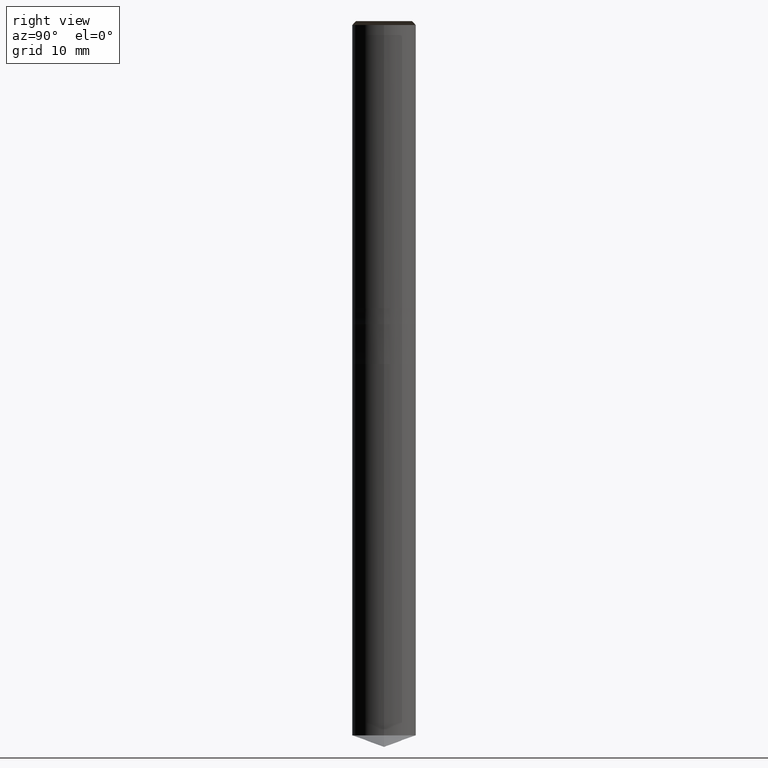
[diagram: clean part render]
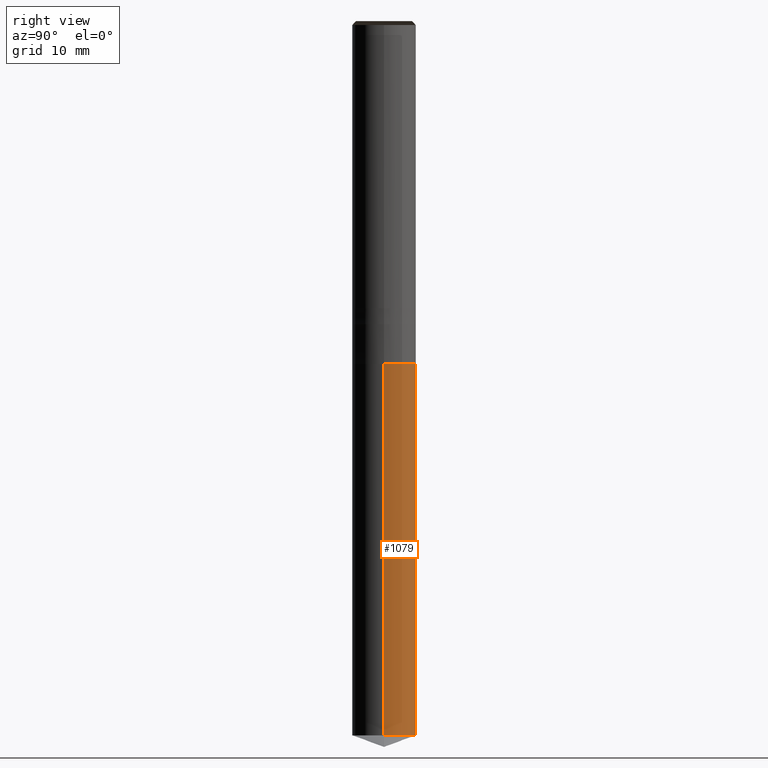
[diagram: same view with one face highlighted and labeled with its STEP entity id]
A machine part, right view. The second image highlights one B-rep face of the part: STEP entity #1079.
In plain terms, the highlighted face is a freeform B-spline surface patch.
Its self-contained STEP definition (entity closure, byte-faithful):
#989=CARTESIAN_POINT('',(4.0,0.0,-53.544119062935));
#990=CARTESIAN_POINT('',(4.0,4.0,-53.544119062935));
#991=CARTESIAN_POINT('',(0.0,4.0,-53.544119062935));
#992=CARTESIAN_POINT('',(-4.0,4.0,-53.544119062935));
#993=CARTESIAN_POINT('',(-4.0,0.0,-53.544119062935));
#994=CARTESIAN_POINT('',(4.0,0.0,-7.0));
#995=CARTESIAN_POINT('',(4.0,4.0,-7.0));
#996=CARTESIAN_POINT('',(0.0,4.0,-7.0));
#997=CARTESIAN_POINT('',(-4.0,4.0,-7.0));
#998=CARTESIAN_POINT('',(-4.0,0.0,-7.0));
#1060=(
BOUNDED_SURFACE()
B_SPLINE_SURFACE(1,2,(
(#989,#990,#991,#992,#993),
(#994,#995,#996,#997,#998)
), .UNSPECIFIED.,.F.,.F.,.F.)
B_SPLINE_SURFACE_WITH_KNOTS((2,2),(3,2,3),(
0.0,1.0),(
0.0,0.5,1.0), .UNSPECIFIED.)
GEOMETRIC_REPRESENTATION_ITEM()
RATIONAL_B_SPLINE_SURFACE(((1.0,0.707106781187,1.0,0.707106781187,1.0),
(1.0,0.707106781187,1.0,0.707106781187,1.0)
))
REPRESENTATION_ITEM('')
SURFACE()
);
#1061=(
BOUNDED_CURVE()
B_SPLINE_CURVE(2,(#993,#992,#991,#990,#989),.UNSPECIFIED.,.F.,.F.)
B_SPLINE_CURVE_WITH_KNOTS((3,2,3),
(0.0,0.5,1.0),.UNSPECIFIED.)
CURVE()
GEOMETRIC_REPRESENTATION_ITEM()
RATIONAL_B_SPLINE_CURVE((1.0,0.707106781187,1.0,0.707106781187,1.0))
REPRESENTATION_ITEM('')
);
#1062=(
BOUNDED_CURVE()
B_SPLINE_CURVE(1,(#989,#994),.UNSPECIFIED.,.F.,.F.)
B_SPLINE_CURVE_WITH_KNOTS((2,2),
(0.0,1.0),.UNSPECIFIED.)
CURVE()
GEOMETRIC_REPRESENTATION_ITEM()
RATIONAL_B_SPLINE_CURVE((1.0,1.0))
REPRESENTATION_ITEM('')
);
#1063=(
BOUNDED_CURVE()
B_SPLINE_CURVE(2,(#994,#995,#996,#997,#998),.UNSPECIFIED.,.F.,.F.)
B_SPLINE_CURVE_WITH_KNOTS((3,2,3),
(0.0,0.5,1.0),.UNSPECIFIED.)
CURVE()
GEOMETRIC_REPRESENTATION_ITEM()
RATIONAL_B_SPLINE_CURVE((1.0,0.707106781187,1.0,0.707106781187,1.0))
REPRESENTATION_ITEM('')
);
#1064=(
BOUNDED_CURVE()
B_SPLINE_CURVE(1,(#998,#993),.UNSPECIFIED.,.F.,.F.)
B_SPLINE_CURVE_WITH_KNOTS((2,2),
(0.0,1.0),.UNSPECIFIED.)
CURVE()
GEOMETRIC_REPRESENTATION_ITEM()
RATIONAL_B_SPLINE_CURVE((1.0,1.0))
REPRESENTATION_ITEM('')
);
#1065=VERTEX_POINT('',#989);
#1066=VERTEX_POINT('',#993);
#1067=VERTEX_POINT('',#994);
#1068=VERTEX_POINT('',#998);
#1069=EDGE_CURVE('',#1066,#1065,#1061,.T.);
#1070=EDGE_CURVE('',#1065,#1067,#1062,.T.);
#1071=EDGE_CURVE('',#1067,#1068,#1063,.T.);
#1072=EDGE_CURVE('',#1068,#1066,#1064,.T.);
#1073=ORIENTED_EDGE('',*,*,#1069,.T.);
#1074=ORIENTED_EDGE('',*,*,#1070,.T.);
#1075=ORIENTED_EDGE('',*,*,#1071,.T.);
#1076=ORIENTED_EDGE('',*,*,#1072,.T.);
#1077=EDGE_LOOP('',(#1073,#1074,#1075,#1076));
#1078=FACE_OUTER_BOUND('',#1077,.T.);
#1079=ADVANCED_FACE('',(#1078),#1060,.T.);